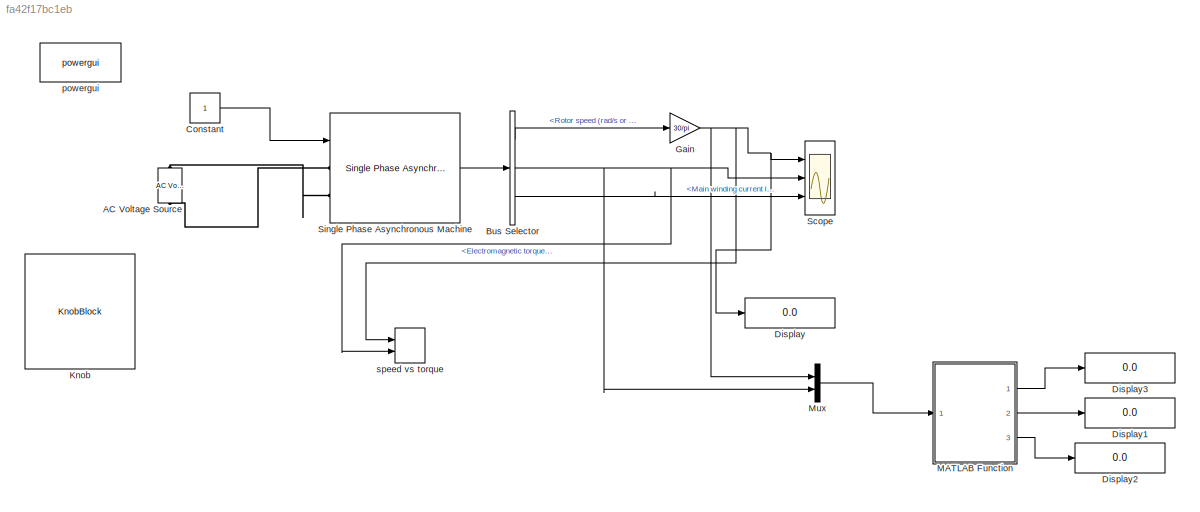
MODEL slx_fa42f17bc1eb
KIND model
CONFIG AbsTol = auto
CONFIG EnableMultiTasking = off
CONFIG FixedStep = auto
CONFIG MaxStep = 1e-4
CONFIG MinStep = auto
CONFIG RelTol = 1e-3
CONFIG SampleTimeConstraint = Unconstrained
CONFIG SolverName = ode23s
CONFIG StartTime = 0.0
CONFIG StopTime = 10
BLOCK [Reference] AC Voltage Source  REF=spsACVoltageSourceLib/AC Voltage Source
  Ports = [0, 0, 0, 0, 0, 1, 1]
  SourceBlock = spsACVoltageSourceLib/AC Voltage Source
  SourceProductBaseCode = PS
  SourceType = AC Voltage Source
BLOCK [BusSelector] Bus Selector
  OutputSignals = Mechanical.Rotor speed (rad/s or pu),Mechanical.Electromagnetic torque Te (N*m or pu),Stator measurements.Main winding current Ia (A or pu)
  Ports = [1, 3]
BLOCK [Constant] Constant
BLOCK [Display] Display
  Decimation = 1
  Ports = [1]
BLOCK [Display] Display1
  Decimation = 1
  Ports = [1]
BLOCK [Display] Display2
  Decimation = 1
  Ports = [1]
BLOCK [Display] Display3
  Decimation = 1
  Ports = [1]
BLOCK [Gain] Gain
  Gain = 30/pi
BLOCK [KnobBlock] Knob
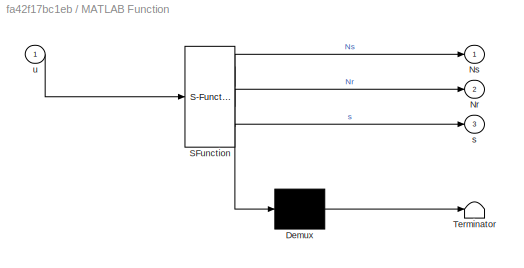
BLOCK [SubSystem] MATLAB Function
  ErrorFcn = Stateflow.Translate.translate
  PermitHierarchicalResolution = ExplicitOnly
  Ports = [1, 3]
  RequestExecContextInheritance = off
  SFBlockType = MATLAB Function
  TreatAsAtomicUnit = on
BLOCK [Demux] MATLAB Function/ Demux 
  Outputs = 1
  Ports = [1, 1]
BLOCK [S-Function] MATLAB Function/ SFunction 
  EnableBusSupport = on
  FunctionName = sf_sfun
  PortCounts = [1 4]
  Ports = [1, 4]
  SFcnIsStateOwnerBlock = off
  SFunctionDeploymentMode = off
  Tag = Stateflow S-Function 2
BLOCK [Terminator] MATLAB Function/ Terminator 
BLOCK [Outport] MATLAB Function/Nr
  Port = 2
BLOCK [Outport] MATLAB Function/Ns
BLOCK [Outport] MATLAB Function/s
  Port = 3
BLOCK [Inport] MATLAB Function/u
BLOCK [Mux] Mux
  DisplayOption = bar
  Inputs = 2
  Ports = [2, 1]
BLOCK [Scope] Scope
  Floating = off
  NumInputPorts = 3
  Ports = [3]
  ScopeSpecificationString = Simulink.scopes.TimeScopeBlockCfg('CurrentConfiguration', extmgr.ConfigurationSet(extmgr.Configuration('Core','General UI',true),extmgr.Configuration('Core','Source UI',true),extmgr.Configuration('Sources','WiredSimulink',true),extmgr.Configuration('Visuals','Time Domain',true,'SerializedDisplays',{struct('MinYLimReal','-189.21087','MaxYLimReal','1678.76523','YLabelReal','','MinYLimMag',' 0.00000'...<+2778ch>
BLOCK [Reference] Single Phase Asynchronous Machine  REF=spsSinglePhaseAsynchronousMachineLib/Single Phase
Asynchronous Machine
  Ports = [1, 1, 0, 0, 0, 2]
  SourceBlock = spsSinglePhaseAsynchronousMachineLib/Single Phase\nAsynchronous Machine
  SourceProductBaseCode = PS
  SourceType = Single Phase Asynchronous Machine
BLOCK [Reference] powergui  REF=spspowerguiLib/powergui
  Ports = []
  Priority = 1
  SourceBlock = spspowerguiLib/powergui
  SourceProductBaseCode = PS
  SourceType = PSB option menu block
BLOCK [Record] speed vs torque
  CompatibilityTag = XY
  FileSettingsInternal = {"entries":[{"content":{"excelSettings":{"content":{},"type":"Streamout.ExcelSettings"}},"type":"Streamout.FileSettingStorage","uuid":"ba92620f-005a-401d-b11c-2729753bf45f"}],"packageUris":["http://schema.mathworks.com/mf0/streamout_blocks/R2020a"],"version":"1.0"}
  Layout = [1 1]
  Ports = [2]
  SignalsInternal = {"entries":[{"content":{"signals":[{"content":{"blockPath":["Single_Phase_Induction_Motor/speed vs torque"],"channel":[],"dimensions":[1],"domain":"Single_Phase_Induction_Motor/speed vs torque","lineColor":"#a2142f","plots":[1],"port":1,"sid":[""],"signalID":1580,"signalName":"Gain"},"type":"RecordBlkView.Signal","uuid":"d4f74786-4319-4a99-9dad-b994138e7e76"},{"content":{"blockPath":["Single_Phase...<+500ch>
  VisualizationBindings = {"xyplotplugin":{"info":[{"series":[{"bindingParametersList":[{"parameter":"X-Axis","signalID":1580,"signalName":"Gain"},{"parameter":"Y-Axis","signalID":1584,"signalName":"<Electromagnetic torque Te (N*m or pu)>"}],"seriesID":5045}],"subplotID":1}]}}
  st = 1e-4
LINE Bus Selector:1 -> Gain:1
NET Bus Selector:2 -> Mux:2, Scope:2, speed vs torque:2
LINE Bus Selector:3 -> Scope:3
LINE Constant:1 -> Single Phase Asynchronous Machine:1
NET Gain:1 -> Display:1, Mux:1, Scope:1, speed vs torque:1
LINE MATLAB Function:1 -> Display3:1
LINE MATLAB Function:2 -> Display1:1
LINE MATLAB Function:3 -> Display2:1
LINE Mux:1 -> MATLAB Function:1
LINE Single Phase Asynchronous Machine:1 -> Bus Selector:1
PLINE AC Voltage Source:LConn1 -- Single Phase Asynchronous Machine:LConn1
PLINE AC Voltage Source:RConn1 -- Single Phase Asynchronous Machine:LConn2
note: NET lines group one-source signal fan-out (src -> all destinations, sorted); 1:1 wires keep LINE
CHART MATLAB Function states=1 transitions=1
  STATE_LABEL 'eML_blk_kernel()'
  STATE_LABEL 'SCRIPT:\nfunction [Ns,Nr,s] = slip(u)\nNs= (2*50*60)/2;\ns=((Ns-u(1))/Ns)*100;\nNr= u(1);\nend\n'
CHART  states=0 transitions=0
